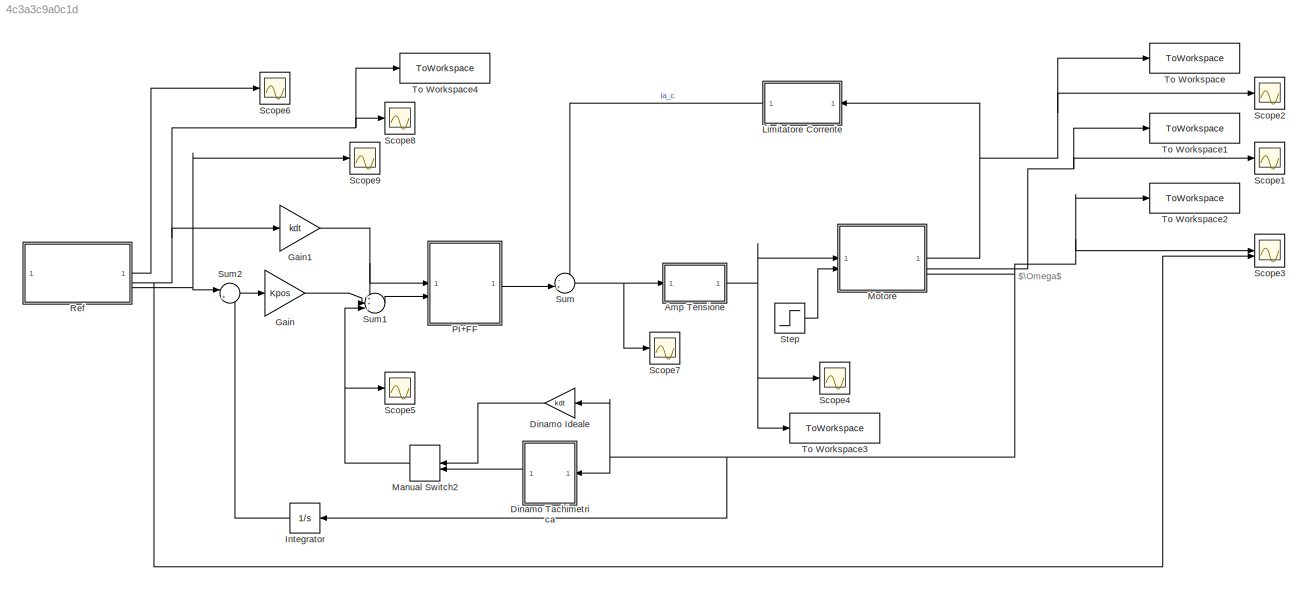
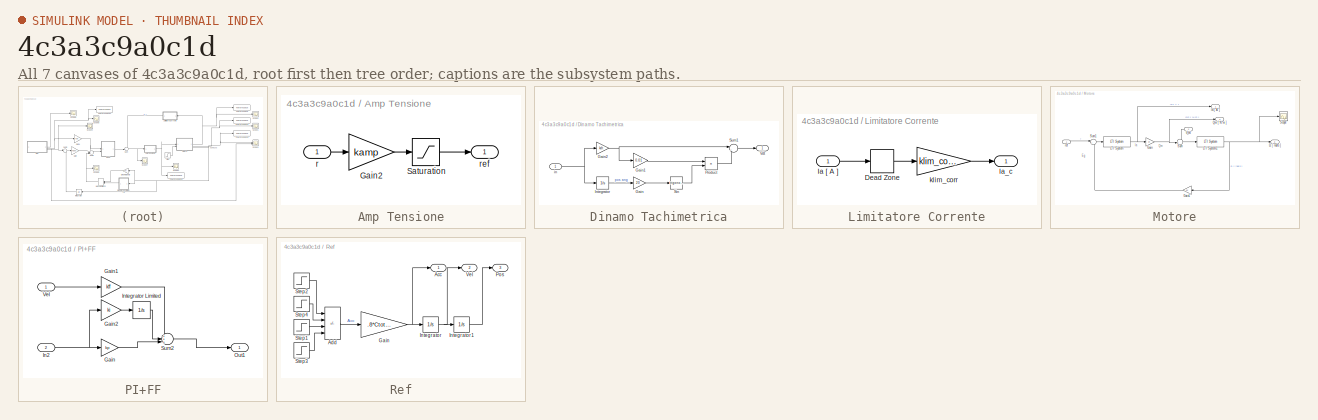
[diagram: thumbnail index - all 7 canvases of the model, root first then tree order]
MODEL slx_4c3a3c9a0c1d
KIND model
CONFIG AbsTol = 1e-5
CONFIG EnableMultiTasking = off
CONFIG FixedStep = auto
CONFIG MaxStep = 1e-4
CONFIG MinStep = auto
CONFIG RelTol = 1e-4
CONFIG SampleTimeConstraint = Unconstrained
CONFIG SolverName = VariableStepAuto
CONFIG StartTime = 0.0
CONFIG StopTime = 18
BLOCK [SubSystem] Amp Tensione
BLOCK [Gain] Amp Tensione/Gain2
  Gain = kamp
BLOCK [Saturate] Amp Tensione/Saturation
  LowerLimit = -Va_lim
  UpperLimit = Va_lim
BLOCK [Inport] Amp Tensione/r
BLOCK [Outport] Amp Tensione/ref
BLOCK [Gain] Dinamo Ideale
  Gain = kdt
  NameLocation = top
BLOCK [SubSystem] Dinamo Tachimetrica
  NameLocation = top
BLOCK [Gain] Dinamo Tachimetrica/Gain
  Gain = 20
BLOCK [Gain] Dinamo Tachimetrica/Gain1
  Gain = 0.01
BLOCK [Gain] Dinamo Tachimetrica/Gain2
  Gain = kdt
BLOCK [Integrator] Dinamo Tachimetrica/Integrator
BLOCK [Product] Dinamo Tachimetrica/Product
BLOCK [Trigonometry] Dinamo Tachimetrica/Sin
BLOCK [Sum] Dinamo Tachimetrica/Sum1
  Inputs = |++
BLOCK [Outport] Dinamo Tachimetrica/Vdt
BLOCK [Inport] Dinamo Tachimetrica/in
BLOCK [Gain] Gain
  Gain = Kpos
BLOCK [Gain] Gain1
  Gain = kdt
BLOCK [Integrator] Integrator
  NameLocation = top
BLOCK [SubSystem] Limitatore Corrente
  NameLocation = top
BLOCK [DeadZone] Limitatore Corrente/Dead Zone
  LowerValue = -ilim
  UpperValue = ilim
BLOCK [Inport] Limitatore Corrente/Ia [ A ]
BLOCK [Outport] Limitatore Corrente/Ia_c
BLOCK [Gain] Limitatore Corrente/klim_corr
  Gain = klim_corr
BLOCK [ManualSwitch] Manual Switch2
  CurrentSetting = 0
  NameLocation = top
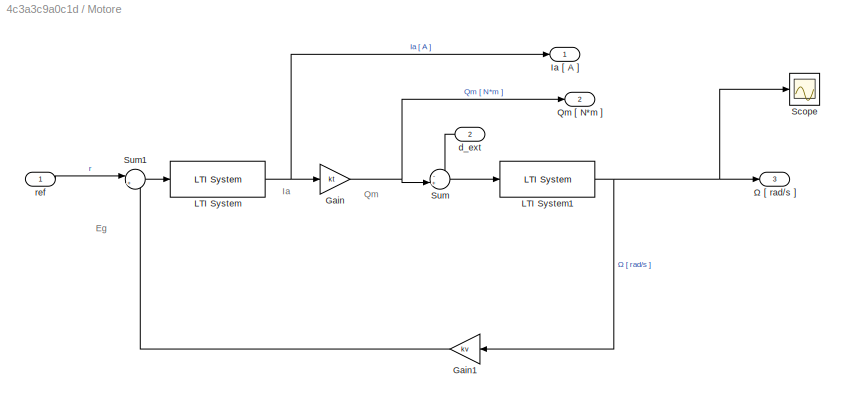
BLOCK [SubSystem] Motore
BLOCK [Gain] Motore/Gain
  Gain = kt
BLOCK [Gain] Motore/Gain1
  Gain = kv
  NameLocation = top
BLOCK [Outport] Motore/Ia [ A ]
BLOCK [Reference] Motore/LTI System  REF=cstblocks/LTI System
  SourceBlock = cstblocks/LTI System
  SourceType = LTI Block
BLOCK [Reference] Motore/LTI System1  REF=cstblocks/LTI System
  SourceBlock = cstblocks/LTI System
  SourceType = LTI Block
BLOCK [Outport] Motore/Qm [ N*m ]
  Port = 2
BLOCK [Scope] Motore/Scope
  Floating = off
  NumInputPorts = 1
  ScopeSpecificationString = Simulink.scopes.TimeScopeBlockCfg('CurrentConfiguration', extmgr.ConfigurationSet(extmgr.Configuration('Core','General UI',true),extmgr.Configuration('Core','Source UI',true),extmgr.Configuration('Sources','WiredSimulink',true,'DataLoggingVariableName','ScopeData3'),extmgr.Configuration('Visuals','Time Domain',true,'SerializedDisplays',{struct('MinYLimReal','283.03424','MaxYLimReal','319.96482','Y...<+1518ch>
BLOCK [Sum] Motore/Sum
  Inputs = -+|
BLOCK [Sum] Motore/Sum1
  Inputs = |+-
BLOCK [Inport] Motore/d_ext
  NameLocation = top
  Port = 2
BLOCK [Inport] Motore/ref
BLOCK [Outport] Motore/Ω [ rad//s ]
  Port = 3
BLOCK [SubSystem] PI+FF
BLOCK [Gain] PI+FF/Gain
  Gain = kp
BLOCK [Gain] PI+FF/Gain1
  Gain = kff
BLOCK [Gain] PI+FF/Gain2
  Gain = ki
BLOCK [Inport] PI+FF/In2
  Port = 2
BLOCK [Integrator] PI+FF/Integrator Limited
  LimitOutput = on
  LowerSaturationLimit = -S_wu
  UpperSaturationLimit = S_wu
BLOCK [Outport] PI+FF/Out1
BLOCK [Sum] PI+FF/Sum2
  Inputs = +++|
BLOCK [Inport] PI+FF/Vel
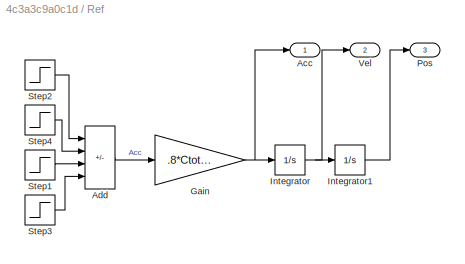
BLOCK [SubSystem] Ref
BLOCK [Outport] Ref/Acc
BLOCK [Sum] Ref/Add
  IconShape = rectangular
  Inputs = ++--
BLOCK [Gain] Ref/Gain
  Gain = .8*Ctot/Jtot
BLOCK [Integrator] Ref/Integrator
BLOCK [Integrator] Ref/Integrator1
BLOCK [Outport] Ref/Pos
  Port = 3
BLOCK [Step] Ref/Step1
  SampleTime = 0
  Time = 2.5
BLOCK [Step] Ref/Step2
  SampleTime = 0
BLOCK [Step] Ref/Step3
  SampleTime = 0
  Time = 14.5
BLOCK [Step] Ref/Step4
  SampleTime = 0
  Time = 16
BLOCK [Outport] Ref/Vel
  Port = 2
BLOCK [Scope] Scope1
  Floating = off
  NumInputPorts = 1
  ScopeSpecificationString = Simulink.scopes.TimeScopeBlockCfg('CurrentConfiguration', extmgr.ConfigurationSet(extmgr.Configuration('Core','General UI',true,'FigureColor',[0.831372549019608 0.815686274509804 0.784313725490196]),extmgr.Configuration('Core','Source UI',true),extmgr.Configuration('Sources','WiredSimulink',true,'DataLoggingVariableName','ScopeData1'),extmgr.Configuration('Visuals','Time Domain',true,'SerializedDi...<+1720ch>
BLOCK [Scope] Scope2
  Floating = off
  NumInputPorts = 1
  ScopeSpecificationString = Simulink.scopes.TimeScopeBlockCfg('CurrentConfiguration', extmgr.ConfigurationSet(extmgr.Configuration('Core','General UI',true,'FigureColor',[0.831372549019608 0.815686274509804 0.784313725490196]),extmgr.Configuration('Core','Source UI',true),extmgr.Configuration('Sources','WiredSimulink',true,'DataLoggingVariableName','ScopeData2'),extmgr.Configuration('Visuals','Time Domain',true,'SerializedDi...<+1710ch>
BLOCK [Scope] Scope3
  Floating = off
  NumInputPorts = 2
  ScopeSpecificationString = Simulink.scopes.TimeScopeBlockCfg('CurrentConfiguration', extmgr.ConfigurationSet(extmgr.Configuration('Core','General UI',true,'FigureColor',[0.831372549019608 0.815686274509804 0.784313725490196]),extmgr.Configuration('Core','Source UI',true),extmgr.Configuration('Sources','WiredSimulink',true,'DataLoggingVariableName','ScopeData2'),extmgr.Configuration('Visuals','Time Domain',true,'SerializedDi...<+1737ch>
BLOCK [Scope] Scope4
  Floating = off
  NumInputPorts = 1
  ScopeSpecificationString = Simulink.scopes.TimeScopeBlockCfg('CurrentConfiguration', extmgr.ConfigurationSet(extmgr.Configuration('Core','General UI',true,'FigureColor',[0.831372549019608 0.815686274509804 0.784313725490196]),extmgr.Configuration('Core','Source UI',true),extmgr.Configuration('Sources','WiredSimulink',true,'DataLoggingVariableName','ScopeData1'),extmgr.Configuration('Visuals','Time Domain',true,'SerializedDi...<+1711ch>
BLOCK [Scope] Scope5
  Floating = off
  NumInputPorts = 1
  ScopeSpecificationString = Simulink.scopes.TimeScopeBlockCfg('CurrentConfiguration', extmgr.ConfigurationSet(extmgr.Configuration('Core','General UI',true,'FigureColor',[0.831372549019608 0.815686274509804 0.784313725490196]),extmgr.Configuration('Core','Source UI',true),extmgr.Configuration('Sources','WiredSimulink',true,'DataLoggingVariableName','ScopeData2'),extmgr.Configuration('Visuals','Time Domain',true,'SerializedDi...<+1734ch>
BLOCK [Scope] Scope6
  Floating = off
  NumInputPorts = 1
  ScopeSpecificationString = Simulink.scopes.TimeScopeBlockCfg('CurrentConfiguration', extmgr.ConfigurationSet(extmgr.Configuration('Core','General UI',true,'FigureColor',[0.831372549019608 0.815686274509804 0.784313725490196]),extmgr.Configuration('Core','Source UI',true),extmgr.Configuration('Sources','WiredSimulink',true,'DataLoggingVariableName','ScopeData1'),extmgr.Configuration('Visuals','Time Domain',true,'SerializedDi...<+1704ch>
BLOCK [Scope] Scope7
  Floating = off
  NumInputPorts = 1
  ScopeSpecificationString = Simulink.scopes.TimeScopeBlockCfg('CurrentConfiguration', extmgr.ConfigurationSet(extmgr.Configuration('Core','General UI',true,'FigureColor',[0.831372549019608 0.815686274509804 0.784313725490196]),extmgr.Configuration('Core','Source UI',true),extmgr.Configuration('Sources','WiredSimulink',true,'DataLoggingVariableName','ScopeData4'),extmgr.Configuration('Visuals','Time Domain',true,'SerializedDi...<+1704ch>
BLOCK [Scope] Scope8
  Floating = off
  NumInputPorts = 1
  ScopeSpecificationString = Simulink.scopes.TimeScopeBlockCfg('CurrentConfiguration', extmgr.ConfigurationSet(extmgr.Configuration('Core','General UI',true,'FigureColor',[0.831372549019608 0.815686274509804 0.784313725490196]),extmgr.Configuration('Core','Source UI',true),extmgr.Configuration('Sources','WiredSimulink',true,'DataLoggingVariableName','ScopeData2'),extmgr.Configuration('Visuals','Time Domain',true,'SerializedDi...<+1712ch>
BLOCK [Scope] Scope9
  Floating = off
  NumInputPorts = 1
  ScopeSpecificationString = Simulink.scopes.TimeScopeBlockCfg('CurrentConfiguration', extmgr.ConfigurationSet(extmgr.Configuration('Core','General UI',true,'FigureColor',[0.831372549019608 0.815686274509804 0.784313725490196]),extmgr.Configuration('Core','Source UI',true),extmgr.Configuration('Sources','WiredSimulink',true,'DataLoggingVariableName','ScopeData3'),extmgr.Configuration('Visuals','Time Domain',true,'SerializedDi...<+1720ch>
BLOCK [Step] Step
  After = Vctr*0.8*0.01
  SampleTime = 0
  Time = 5
BLOCK [Sum] Sum
  Inputs = -+|
BLOCK [Sum] Sum1
  Inputs = ++-|
BLOCK [Sum] Sum2
  Inputs = |+-
BLOCK [ToWorkspace] To Workspace
  FixptAsFi = on
  MaxDataPoints = inf
  SampleTime = -1
  SaveFormat = Timeseries
  VariableName = ia_vuoto2
BLOCK [ToWorkspace] To Workspace1
  FixptAsFi = on
  MaxDataPoints = inf
  SampleTime = -1
  SaveFormat = Timeseries
  VariableName = coppia_vuoto2
BLOCK [ToWorkspace] To Workspace2
  FixptAsFi = on
  MaxDataPoints = inf
  SampleTime = -1
  SaveFormat = Timeseries
  VariableName = omega_vuoto2
BLOCK [ToWorkspace] To Workspace3
  FixptAsFi = on
  MaxDataPoints = inf
  SampleTime = -1
  SaveFormat = Timeseries
  VariableName = va_lim
BLOCK [ToWorkspace] To Workspace4
  FixptAsFi = on
  MaxDataPoints = inf
  SampleTime = -1
  SaveFormat = Timeseries
  VariableName = VelRef
ANNOTATION (root): $\Omega$
ANNOTATION Motore: Eg
ANNOTATION Motore: Ia
ANNOTATION Motore: Qm
LINE Amp Tensione/Gain2:1 -> Amp Tensione/Saturation:1
LINE Amp Tensione/Saturation:1 -> Amp Tensione/ref:1
LINE Amp Tensione/r:1 -> Amp Tensione/Gain2:1
NET Amp Tensione:1 -> Motore:1, Scope4:1, To Workspace3:1
LINE Dinamo Ideale:1 -> Manual Switch2:1
LINE Dinamo Tachimetrica/Gain1:1 -> Dinamo Tachimetrica/Product:1
NET Dinamo Tachimetrica/Gain2:1 -> Dinamo Tachimetrica/Gain1:1, Dinamo Tachimetrica/Sum1:1
LINE Dinamo Tachimetrica/Gain:1 -> Dinamo Tachimetrica/Sin:1
LINE Dinamo Tachimetrica/Integrator:1 -> Dinamo Tachimetrica/Gain:1
LINE Dinamo Tachimetrica/Product:1 -> Dinamo Tachimetrica/Sum1:2
LINE Dinamo Tachimetrica/Sin:1 -> Dinamo Tachimetrica/Product:2
LINE Dinamo Tachimetrica/Sum1:1 -> Dinamo Tachimetrica/Vdt:1
NET Dinamo Tachimetrica/in:1 -> Dinamo Tachimetrica/Gain2:1, Dinamo Tachimetrica/Integrator:1
LINE Dinamo Tachimetrica:1 -> Manual Switch2:2
NET Gain1:1 -> PI+FF:1, Sum1:1
LINE Gain:1 -> Sum1:2
LINE Integrator:1 -> Sum2:2
LINE Limitatore Corrente/Dead Zone:1 -> Limitatore Corrente/klim_corr:1
LINE Limitatore Corrente/Ia [ A ]:1 -> Limitatore Corrente/Dead Zone:1
LINE Limitatore Corrente/klim_corr:1 -> Limitatore Corrente/Ia_c:1
LINE Limitatore Corrente:1 -> Sum:1
NET Manual Switch2:1 -> Scope5:1, Sum1:3
LINE Motore/Gain1:1 -> Motore/Sum1:2
NET Motore/Gain:1 -> Motore/Qm [ N*m ]:1, Motore/Sum:2
NET Motore/LTI System1:1 -> Motore/Gain1:1, Motore/Scope:1, Motore/Ω [ rad//s ]:1
NET Motore/LTI System:1 -> Motore/Gain:1, Motore/Ia [ A ]:1
LINE Motore/Sum1:1 -> Motore/LTI System:1
LINE Motore/Sum:1 -> Motore/LTI System1:1
LINE Motore/d_ext:1 -> Motore/Sum:1
LINE Motore/ref:1 -> Motore/Sum1:1
NET Motore:1 -> Limitatore Corrente:1, Scope2:1, To Workspace:1
NET Motore:2 -> Scope1:1, To Workspace1:1
NET Motore:3 -> Dinamo Ideale:1, Dinamo Tachimetrica:1, Integrator:1, Scope3:1, To Workspace2:1
LINE PI+FF/Gain1:1 -> PI+FF/Sum2:1
LINE PI+FF/Gain2:1 -> PI+FF/Integrator Limited:1
LINE PI+FF/Gain:1 -> PI+FF/Sum2:3
NET PI+FF/In2:1 -> PI+FF/Gain2:1, PI+FF/Gain:1
LINE PI+FF/Integrator Limited:1 -> PI+FF/Sum2:2
LINE PI+FF/Sum2:1 -> PI+FF/Out1:1
LINE PI+FF/Vel:1 -> PI+FF/Gain1:1
LINE PI+FF:1 -> Sum:2
LINE Ref/Add:1 -> Ref/Gain:1
NET Ref/Gain:1 -> Ref/Acc:1, Ref/Integrator:1
LINE Ref/Integrator1:1 -> Ref/Pos:1
NET Ref/Integrator:1 -> Ref/Integrator1:1, Ref/Vel:1
LINE Ref/Step1:1 -> Ref/Add:3
LINE Ref/Step2:1 -> Ref/Add:1
LINE Ref/Step3:1 -> Ref/Add:4
LINE Ref/Step4:1 -> Ref/Add:2
LINE Ref:1 -> Scope6:1
NET Ref:2 -> Gain1:1, Scope3:2, Scope8:1, To Workspace4:1
NET Ref:3 -> Scope9:1, Sum2:1
LINE Step:1 -> Motore:2
LINE Sum1:1 -> PI+FF:2
LINE Sum2:1 -> Gain:1
NET Sum:1 -> Amp Tensione:1, Scope7:1
note: NET lines group one-source signal fan-out (src -> all destinations, sorted); 1:1 wires keep LINE
